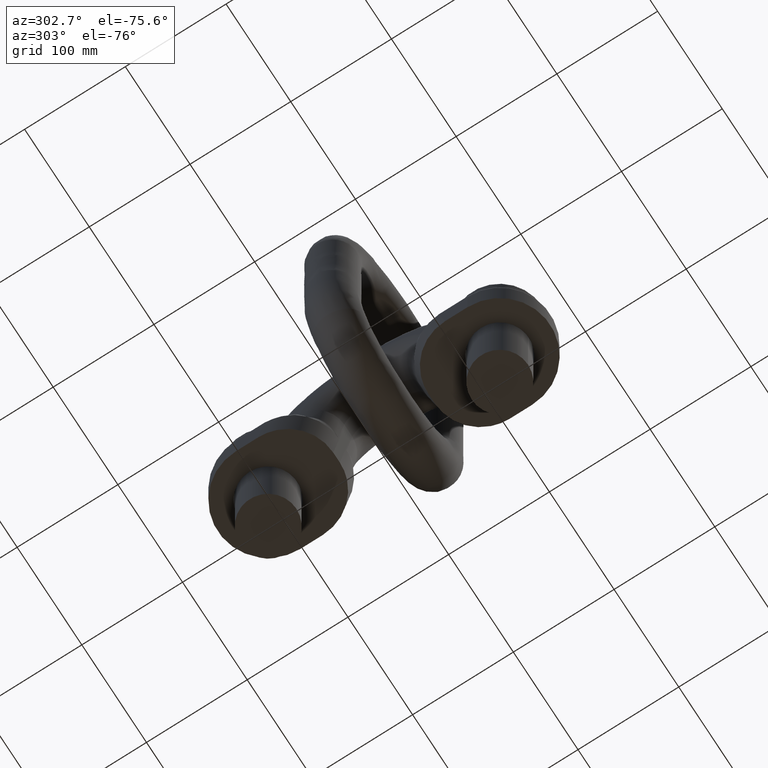
[diagram: clean part render]
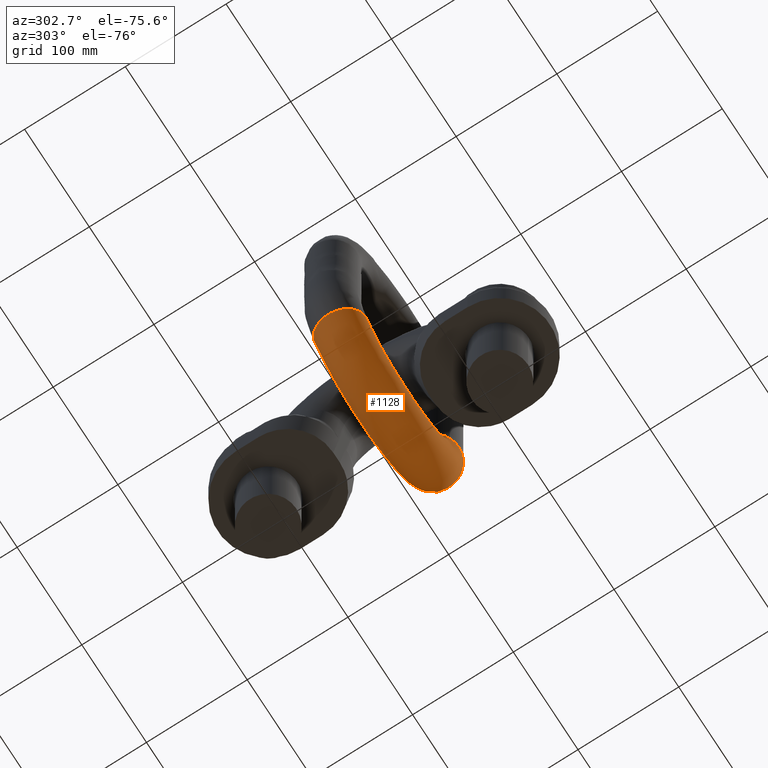
[diagram: same view with one face highlighted and labeled with its STEP entity id]
A machine part, auxiliary view. The second image highlights one B-rep face of the part: STEP entity #1128.
In plain terms, the highlighted face is a freeform B-spline surface patch.
Its self-contained STEP definition (entity closure, byte-faithful):
#31=(
BOUNDED_CURVE()
B_SPLINE_CURVE(4,(#6831,#6832,#6833,#6834,#6835,#6836,#6837,#6838,#6839,
#6840,#6841,#6842,#6843,#6844),.UNSPECIFIED.,.T.,.F.)
B_SPLINE_CURVE_WITH_KNOTS((2,3,3,3,3,3,2),(-0.25,0.,0.25,0.5,0.75,1.,1.25),
 .UNSPECIFIED.)
CURVE()
GEOMETRIC_REPRESENTATION_ITEM()
RATIONAL_B_SPLINE_CURVE((1.0166117137858,1.0166117137858,0.958470715535492,
1.0166117137858,1.0166117137858,0.958470715535492,1.0166117137858,1.0166117137858,
0.958470715535492,1.0166117137858,1.0166117137858,0.958470715535492,1.0166117137858,
1.0166117137858))
REPRESENTATION_ITEM('')
);
#33=(
BOUNDED_CURVE()
B_SPLINE_CURVE(4,(#7029,#7030,#7031,#7032,#7033,#7034,#7035,#7036,#7037,
#7038,#7039,#7040,#7041,#7042),.UNSPECIFIED.,.T.,.F.)
B_SPLINE_CURVE_WITH_KNOTS((2,3,3,3,3,3,2),(-0.25,0.,0.25,0.5,0.75,1.,1.25),
 .UNSPECIFIED.)
CURVE()
GEOMETRIC_REPRESENTATION_ITEM()
RATIONAL_B_SPLINE_CURVE((1.0166117137858,1.0166117137858,0.958470715535492,
1.0166117137858,1.0166117137858,0.958470715535492,1.0166117137858,1.0166117137858,
0.958470715535492,1.0166117137858,1.0166117137858,0.958470715535492,1.0166117137858,
1.0166117137858))
REPRESENTATION_ITEM('')
);
#820=(
BOUNDED_SURFACE()
B_SPLINE_SURFACE(4,3,((#7044,#7045,#7046,#7047,#7048,#7049,#7050,#7051,
#7052,#7053,#7054,#7055),(#7056,#7057,#7058,#7059,#7060,#7061,#7062,#7063,
#7064,#7065,#7066,#7067),(#7068,#7069,#7070,#7071,#7072,#7073,#7074,#7075,
#7076,#7077,#7078,#7079),(#7080,#7081,#7082,#7083,#7084,#7085,#7086,#7087,
#7088,#7089,#7090,#7091),(#7092,#7093,#7094,#7095,#7096,#7097,#7098,#7099,
#7100,#7101,#7102,#7103),(#7104,#7105,#7106,#7107,#7108,#7109,#7110,#7111,
#7112,#7113,#7114,#7115),(#7116,#7117,#7118,#7119,#7120,#7121,#7122,#7123,
#7124,#7125,#7126,#7127),(#7128,#7129,#7130,#7131,#7132,#7133,#7134,#7135,
#7136,#7137,#7138,#7139),(#7140,#7141,#7142,#7143,#7144,#7145,#7146,#7147,
#7148,#7149,#7150,#7151),(#7152,#7153,#7154,#7155,#7156,#7157,#7158,#7159,
#7160,#7161,#7162,#7163),(#7164,#7165,#7166,#7167,#7168,#7169,#7170,#7171,
#7172,#7173,#7174,#7175),(#7176,#7177,#7178,#7179,#7180,#7181,#7182,#7183,
#7184,#7185,#7186,#7187),(#7188,#7189,#7190,#7191,#7192,#7193,#7194,#7195,
#7196,#7197,#7198,#7199),(#7200,#7201,#7202,#7203,#7204,#7205,#7206,#7207,
#7208,#7209,#7210,#7211)),.UNSPECIFIED.,.T.,.F.,.F.)
B_SPLINE_SURFACE_WITH_KNOTS((2,3,3,3,3,3,2),(4,1,1,1,1,1,1,1,1,4),(-0.25,
0.,0.25,0.5,0.75,1.,1.25),(0.,0.0528319035243313,0.165101553258079,0.267210568821174,
0.425345898059021,0.609206614633371,0.807379625083767,0.901122363921789,
0.930838667900715,1.),.UNSPECIFIED.)
GEOMETRIC_REPRESENTATION_ITEM()
RATIONAL_B_SPLINE_SURFACE(((1.0166117137858,1.0166117137858,1.0166117137858,
1.0166117137858,1.0166117137858,1.0166117137858,1.0166117137858,1.0166117137858,
1.01661171378581,1.0166117137858,1.0166117137858,1.0166117137858),(1.0166117137858,
1.0166117137858,1.0166117137858,1.0166117137858,1.0166117137858,1.0166117137858,
1.0166117137858,1.0166117137858,1.01661171378581,1.0166117137858,1.0166117137858,
1.0166117137858),(0.958470715535492,0.958470715535493,0.958470715535494,
0.95847071553549,0.958470715535494,0.958470715535491,0.958470715535491,
0.958470715535494,0.95847071553549,0.958470715535494,0.958470715535492,
0.958470715535492),(1.0166117137858,1.0166117137858,1.0166117137858,1.0166117137858,
1.0166117137858,1.0166117137858,1.0166117137858,1.0166117137858,1.01661171378581,
1.0166117137858,1.0166117137858,1.0166117137858),(1.0166117137858,1.0166117137858,
1.0166117137858,1.0166117137858,1.0166117137858,1.0166117137858,1.0166117137858,
1.0166117137858,1.01661171378581,1.0166117137858,1.0166117137858,1.0166117137858),
(0.958470715535492,0.958470715535493,0.958470715535494,0.95847071553549,
0.958470715535494,0.958470715535491,0.958470715535491,0.958470715535494,
0.95847071553549,0.958470715535494,0.958470715535492,0.958470715535492),
(1.0166117137858,1.0166117137858,1.0166117137858,1.0166117137858,1.0166117137858,
1.0166117137858,1.0166117137858,1.0166117137858,1.01661171378581,1.0166117137858,
1.0166117137858,1.0166117137858),(1.0166117137858,1.0166117137858,1.0166117137858,
1.0166117137858,1.0166117137858,1.0166117137858,1.0166117137858,1.0166117137858,
1.01661171378581,1.0166117137858,1.0166117137858,1.0166117137858),(0.958470715535492,
0.958470715535493,0.958470715535494,0.95847071553549,0.958470715535494,
0.958470715535491,0.958470715535491,0.958470715535494,0.95847071553549,
0.958470715535494,0.958470715535492,0.958470715535492),(1.0166117137858,
1.0166117137858,1.0166117137858,1.0166117137858,1.0166117137858,1.0166117137858,
1.0166117137858,1.0166117137858,1.01661171378581,1.0166117137858,1.0166117137858,
1.0166117137858),(1.0166117137858,1.0166117137858,1.0166117137858,1.0166117137858,
1.0166117137858,1.0166117137858,1.0166117137858,1.0166117137858,1.01661171378581,
1.0166117137858,1.0166117137858,1.0166117137858),(0.958470715535492,0.958470715535493,
0.958470715535494,0.95847071553549,0.958470715535494,0.958470715535491,
0.958470715535491,0.958470715535494,0.95847071553549,0.958470715535494,
0.958470715535492,0.958470715535492),(1.0166117137858,1.0166117137858,1.0166117137858,
1.0166117137858,1.0166117137858,1.0166117137858,1.0166117137858,1.0166117137858,
1.01661171378581,1.0166117137858,1.0166117137858,1.0166117137858),(1.0166117137858,
1.0166117137858,1.0166117137858,1.0166117137858,1.0166117137858,1.0166117137858,
1.0166117137858,1.0166117137858,1.01661171378581,1.0166117137858,1.0166117137858,
1.0166117137858)))
REPRESENTATION_ITEM('')
SURFACE()
);
#1128=ADVANCED_FACE('',(#1207,#1208),#820,.F.);
#1207=FACE_BOUND('',#1396,.T.);
#1208=FACE_BOUND('',#1397,.T.);
#1396=EDGE_LOOP('',(#2733));
#1397=EDGE_LOOP('',(#2734));
#2733=ORIENTED_EDGE('',*,*,#3414,.T.);
#2734=ORIENTED_EDGE('',*,*,#3412,.F.);
#3008=VERTEX_POINT('',#6845);
#3010=VERTEX_POINT('',#7043);
#3412=EDGE_CURVE('',#3008,#3008,#31,.T.);
#3414=EDGE_CURVE('',#3010,#3010,#33,.T.);
#6831=CARTESIAN_POINT('',(86.9712002915969,24.,141.527378218331));
#6832=CARTESIAN_POINT('',(70.1003599779186,24.,143.37095792877));
#6833=CARTESIAN_POINT('',(58.8945190329427,19.7573593128807,144.59548857576));
#6834=CARTESIAN_POINT('',(54.6768089545232,8.48528137423857,145.05638350337));
#6835=CARTESIAN_POINT('',(54.6768089545231,-8.48528137423857,145.05638350337));
#6836=CARTESIAN_POINT('',(58.8945190329428,-19.7573593128807,144.59548857576));
#6837=CARTESIAN_POINT('',(70.1003599779186,-24.,143.37095792877));
#6838=CARTESIAN_POINT('',(86.971200291597,-24.,141.527378218331));
#6839=CARTESIAN_POINT('',(98.1770412365729,-19.7573593128807,140.302847571342));
#6840=CARTESIAN_POINT('',(102.394751314992,-8.48528137423857,139.841952643732));
#6841=CARTESIAN_POINT('',(102.394751314992,8.48528137423857,139.841952643732));
#6842=CARTESIAN_POINT('',(98.1770412365728,19.7573593128807,140.302847571342));
#6843=CARTESIAN_POINT('',(86.9712002915969,24.,141.527378218331));
#6844=CARTESIAN_POINT('',(70.1003599779186,24.,143.37095792877));
#6845=CARTESIAN_POINT('',(78.5357801347578,24.,142.449168073551));
#7029=CARTESIAN_POINT('',(-73.8723523906407,24.,104.130348060499));
#7030=CARTESIAN_POINT('',(-59.5424517269995,24.,113.221512363064));
#7031=CARTESIAN_POINT('',(-50.0243373587497,19.7573593128807,119.25998699059));
#7032=CARTESIAN_POINT('',(-46.4418621928395,8.48528137423857,121.532778066231));
#7033=CARTESIAN_POINT('',(-46.4418621928395,-8.48528137423857,121.532778066231));
#7034=CARTESIAN_POINT('',(-50.0243373587497,-19.7573593128807,119.25998699059));
#7035=CARTESIAN_POINT('',(-59.5424517269995,-24.,113.221512363064));
#7036=CARTESIAN_POINT('',(-73.8723523906407,-24.,104.130348060499));
#7037=CARTESIAN_POINT('',(-83.3904667588903,-19.7573593128807,98.0918734329735));
#7038=CARTESIAN_POINT('',(-86.9729419248007,-8.48528137423857,95.8190823573323));
#7039=CARTESIAN_POINT('',(-86.9729419248007,8.48528137423857,95.8190823573323));
#7040=CARTESIAN_POINT('',(-83.3904667588904,19.7573593128807,98.0918734329734));
#7041=CARTESIAN_POINT('',(-73.8723523906407,24.,104.130348060499));
#7042=CARTESIAN_POINT('',(-59.5424517269995,24.,113.221512363064));
#7043=CARTESIAN_POINT('',(-66.7074020588201,24.,108.675930211782));
#7044=CARTESIAN_POINT('',(-59.5424517269995,24.,113.221512363064));
#7045=CARTESIAN_POINT('',(-57.6168782580571,24.,110.186603322215));
#7046=CARTESIAN_POINT('',(-51.035637349192,24.,101.427405573676));
#7047=CARTESIAN_POINT('',(-38.2648759928122,24.,90.7304524598509));
#7048=CARTESIAN_POINT('',(-18.2119717772526,24.,81.6041249394051));
#7049=CARTESIAN_POINT('',(7.12990876207046,24.,78.903236163781));
#7050=CARTESIAN_POINT('',(35.9511714004425,23.9999999999999,87.6643141273451));
#7051=CARTESIAN_POINT('',(55.8071198695015,24.0000000000001,105.487760311045));
#7052=CARTESIAN_POINT('',(64.5167084620211,23.9999999999999,121.789766428194));
#7053=CARTESIAN_POINT('',(68.2986738149283,24.0000000000001,132.664663522906));
#7054=CARTESIAN_POINT('',(69.6136440000928,24.,138.85682230609));
#7055=CARTESIAN_POINT('',(70.1003599779186,24.,143.37095792877));
#7056=CARTESIAN_POINT('',(-73.8723523906407,24.,104.130348060499));
#7057=CARTESIAN_POINT('',(-71.4833570146112,24.,100.364887777428));
#7058=CARTESIAN_POINT('',(-63.3182288834684,24.,89.4956267569343));
#7059=CARTESIAN_POINT('',(-47.4739672544974,24.,76.2269483417273));
#7060=CARTESIAN_POINT('',(-22.5949916035911,24.0000000000001,64.9008989085714));
#7061=CARTESIAN_POINT('',(8.8458422049764,23.9999999999999,61.555898518538));
#7062=CARTESIAN_POINT('',(44.6034304211264,24.0000000000001,72.4159644218796));
#7063=CARTESIAN_POINT('',(69.2380495807134,24.,94.544243344412));
#7064=CARTESIAN_POINT('',(80.0437483572698,24.,114.74169198737));
#7065=CARTESIAN_POINT('',(84.7359078021772,24.,128.308757551302));
#7066=CARTESIAN_POINT('',(86.3673478604832,24.,135.840585344414));
#7067=CARTESIAN_POINT('',(86.9712002915969,24.,141.527378218331));
#7068=CARTESIAN_POINT('',(-83.3904667588904,19.7573593128807,98.0918734329734));
#7069=CARTESIAN_POINT('',(-80.6936602670728,19.7573593128807,93.8411711068087));
#7070=CARTESIAN_POINT('',(-71.4764927616237,19.7573593128807,81.5703774436187));
#7071=CARTESIAN_POINT('',(-53.5907705676404,19.7573593128808,66.5935242045356));
#7072=CARTESIAN_POINT('',(-25.5062528163953,19.7573593128807,53.8063896435082));
#7073=CARTESIAN_POINT('',(9.98558846988398,19.7573593128807,50.0335615835027));
#7074=CARTESIAN_POINT('',(50.3503782078298,19.7573593128807,62.2878037437011));
#7075=CARTESIAN_POINT('',(78.1590552501798,19.7573593128807,87.2754109551145));
#7076=CARTESIAN_POINT('',(90.3570188392026,19.7573593128807,110.06026535516));
#7077=CARTESIAN_POINT('',(95.6537415444076,19.7573593128807,125.41550572854));
#7078=CARTESIAN_POINT('',(97.495385184537,19.7573593128807,133.837159847138));
#7079=CARTESIAN_POINT('',(98.1770412365728,19.7573593128807,140.302847571342));
#7080=CARTESIAN_POINT('',(-86.9729419248007,8.48528137423857,95.8190823573323));
#7081=CARTESIAN_POINT('',(-84.1602799562113,8.48528137423856,91.3857422206118));
#7082=CARTESIAN_POINT('',(-74.5471406451928,8.48528137423856,78.5874327394334));
#7083=CARTESIAN_POINT('',(-55.8930433830617,8.48528137423856,62.9676481750045));
#7084=CARTESIAN_POINT('',(-26.60200777298,8.48528137423857,49.6305831358));
#7085=CARTESIAN_POINT('',(10.4145718306105,8.48528137423852,45.6967271721916));
#7086=CARTESIAN_POINT('',(52.5134429630006,8.48528137423858,58.4757163173349));
#7087=CARTESIAN_POINT('',(81.5167876779831,8.4852813742386,84.5395317134561));
#7088=CARTESIAN_POINT('',(94.2387788130144,8.48528137423856,108.298246744954));
#7089=CARTESIAN_POINT('',(99.7630500412202,8.4852813742386,124.32652923564));
#7090=CARTESIAN_POINT('',(101.683811149635,8.48528137423856,133.083100606719));
#7091=CARTESIAN_POINT('',(102.394751314992,8.48528137423857,139.841952643732));
#7092=CARTESIAN_POINT('',(-86.9729419248007,-8.48528137423857,95.8190823573323));
#7093=CARTESIAN_POINT('',(-84.1602799562113,-8.48528137423857,91.3857422206118));
#7094=CARTESIAN_POINT('',(-74.5471406451928,-8.48528137423858,78.5874327394334));
#7095=CARTESIAN_POINT('',(-55.8930433830616,-8.48528137423858,62.9676481750045));
#7096=CARTESIAN_POINT('',(-26.60200777298,-8.48528137423857,49.6305831358));
#7097=CARTESIAN_POINT('',(10.4145718306106,-8.48528137423861,45.6967271721916));
#7098=CARTESIAN_POINT('',(52.5134429630005,-8.48528137423856,58.4757163173349));
#7099=CARTESIAN_POINT('',(81.5167876779832,-8.48528137423856,84.5395317134561));
#7100=CARTESIAN_POINT('',(94.2387788130144,-8.48528137423855,108.298246744954));
#7101=CARTESIAN_POINT('',(99.7630500412202,-8.48528137423856,124.32652923564));
#7102=CARTESIAN_POINT('',(101.683811149635,-8.48528137423857,133.083100606719));
#7103=CARTESIAN_POINT('',(102.394751314992,-8.48528137423857,139.841952643732));
#7104=CARTESIAN_POINT('',(-83.3904667588903,-19.7573593128807,98.0918734329735));
#7105=CARTESIAN_POINT('',(-80.6936602670727,-19.7573593128807,93.8411711068087));
#7106=CARTESIAN_POINT('',(-71.4764927616237,-19.7573593128807,81.5703774436185));
#7107=CARTESIAN_POINT('',(-53.5907705676403,-19.7573593128808,66.5935242045357));
#7108=CARTESIAN_POINT('',(-25.5062528163953,-19.7573593128807,53.8063896435081));
#7109=CARTESIAN_POINT('',(9.98558846988402,-19.7573593128808,50.0335615835028));
#7110=CARTESIAN_POINT('',(50.3503782078297,-19.7573593128807,62.2878037437011));
#7111=CARTESIAN_POINT('',(78.1590552501798,-19.7573593128807,87.2754109551144));
#7112=CARTESIAN_POINT('',(90.3570188392027,-19.7573593128807,110.06026535516));
#7113=CARTESIAN_POINT('',(95.6537415444076,-19.7573593128807,125.41550572854));
#7114=CARTESIAN_POINT('',(97.495385184537,-19.7573593128807,133.837159847138));
#7115=CARTESIAN_POINT('',(98.1770412365729,-19.7573593128807,140.302847571342));
#7116=CARTESIAN_POINT('',(-73.8723523906407,-24.,104.130348060499));
#7117=CARTESIAN_POINT('',(-71.4833570146112,-24.,100.364887777428));
#7118=CARTESIAN_POINT('',(-63.3182288834685,-24.,89.4956267569344));
#7119=CARTESIAN_POINT('',(-47.4739672544974,-24.,76.2269483417272));
#7120=CARTESIAN_POINT('',(-22.5949916035911,-24.,64.9008989085714));
#7121=CARTESIAN_POINT('',(8.84584220497634,-24.,61.5558985185381));
#7122=CARTESIAN_POINT('',(44.6034304211264,-23.9999999999999,72.4159644218794));
#7123=CARTESIAN_POINT('',(69.2380495807134,-24.0000000000001,94.5442433444122));
#7124=CARTESIAN_POINT('',(80.0437483572699,-23.9999999999999,114.74169198737));
#7125=CARTESIAN_POINT('',(84.7359078021772,-24.0000000000001,128.308757551302));
#7126=CARTESIAN_POINT('',(86.3673478604833,-24.,135.840585344414));
#7127=CARTESIAN_POINT('',(86.971200291597,-24.,141.527378218331));
#7128=CARTESIAN_POINT('',(-59.5424517269995,-24.,113.221512363064));
#7129=CARTESIAN_POINT('',(-57.6168782580571,-24.,110.186603322215));
#7130=CARTESIAN_POINT('',(-51.035637349192,-24.,101.427405573676));
#7131=CARTESIAN_POINT('',(-38.2648759928122,-24.,90.730452459851));
#7132=CARTESIAN_POINT('',(-18.2119717772526,-24.,81.6041249394051));
#7133=CARTESIAN_POINT('',(7.12990876207042,-24.,78.903236163781));
#7134=CARTESIAN_POINT('',(35.9511714004425,-24.,87.6643141273451));
#7135=CARTESIAN_POINT('',(55.8071198695015,-24.,105.487760311045));
#7136=CARTESIAN_POINT('',(64.516708462021,-24.,121.789766428194));
#7137=CARTESIAN_POINT('',(68.2986738149283,-24.,132.664663522906));
#7138=CARTESIAN_POINT('',(69.6136440000928,-24.,138.85682230609));
#7139=CARTESIAN_POINT('',(70.1003599779186,-24.,143.37095792877));
#7140=CARTESIAN_POINT('',(-50.0243373587497,-19.7573593128807,119.25998699059));
#7141=CARTESIAN_POINT('',(-48.4065750055955,-19.7573593128807,116.710319992834));
#7142=CARTESIAN_POINT('',(-42.8773734710366,-19.7573593128807,109.352654886991));
#7143=CARTESIAN_POINT('',(-32.1480726796695,-19.7573593128807,100.363876597043));
#7144=CARTESIAN_POINT('',(-15.3007105644482,-19.7573593128807,92.6986342044679));
#7145=CARTESIAN_POINT('',(5.99016249716267,-19.7573593128807,90.4255730988169));
#7146=CARTESIAN_POINT('',(30.2042236137394,-19.7573593128807,97.7924748055233));
#7147=CARTESIAN_POINT('',(46.8861142000346,-19.7573593128807,112.756592700343));
#7148=CARTESIAN_POINT('',(54.2034379800888,-19.7573593128808,126.471193060405));
#7149=CARTESIAN_POINT('',(57.3808400726974,-19.7573593128807,135.557915345667));
#7150=CARTESIAN_POINT('',(58.485606676039,-19.7573593128807,140.860247803367));
#7151=CARTESIAN_POINT('',(58.8945190329428,-19.7573593128807,144.59548857576));
#7152=CARTESIAN_POINT('',(-46.4418621928395,-8.48528137423857,121.532778066231));
#7153=CARTESIAN_POINT('',(-44.9399553164571,-8.48528137423857,119.165748879031));
#7154=CARTESIAN_POINT('',(-39.8067255874675,-8.48528137423856,112.335599591176));
#7155=CARTESIAN_POINT('',(-29.8457998642481,-8.48528137423857,103.989752626574));
#7156=CARTESIAN_POINT('',(-14.2049556078636,-8.48528137423857,96.8744407121766));
#7157=CARTESIAN_POINT('',(5.56117913643615,-8.48528137423853,94.7624075101277));
#7158=CARTESIAN_POINT('',(28.0411588585685,-8.48528137423858,101.604562231889));
#7159=CARTESIAN_POINT('',(43.5283817722317,-8.4852813742386,115.492471942002));
#7160=CARTESIAN_POINT('',(50.3216780062765,-8.48528137423857,128.23321167061));
#7161=CARTESIAN_POINT('',(53.2715315758854,-8.4852813742386,136.646891838569));
#7162=CARTESIAN_POINT('',(54.2971807109413,-8.48528137423857,141.614307043786));
#7163=CARTESIAN_POINT('',(54.6768089545231,-8.48528137423857,145.05638350337));
#7164=CARTESIAN_POINT('',(-46.4418621928395,8.48528137423857,121.532778066231));
#7165=CARTESIAN_POINT('',(-44.9399553164571,8.48528137423857,119.165748879031));
#7166=CARTESIAN_POINT('',(-39.8067255874675,8.48528137423857,112.335599591176));
#7167=CARTESIAN_POINT('',(-29.8457998642481,8.48528137423859,103.989752626574));
#7168=CARTESIAN_POINT('',(-14.2049556078636,8.48528137423857,96.8744407121766));
#7169=CARTESIAN_POINT('',(5.56117913643618,8.4852813742386,94.7624075101277));
#7170=CARTESIAN_POINT('',(28.0411588585684,8.48528137423857,101.604562231889));
#7171=CARTESIAN_POINT('',(43.5283817722318,8.48528137423855,115.492471942002));
#7172=CARTESIAN_POINT('',(50.3216780062765,8.48528137423856,128.23321167061));
#7173=CARTESIAN_POINT('',(53.2715315758853,8.48528137423855,136.646891838569));
#7174=CARTESIAN_POINT('',(54.2971807109413,8.48528137423857,141.614307043786));
#7175=CARTESIAN_POINT('',(54.6768089545232,8.48528137423857,145.05638350337));
#7176=CARTESIAN_POINT('',(-50.0243373587497,19.7573593128807,119.25998699059));
#7177=CARTESIAN_POINT('',(-48.4065750055955,19.7573593128807,116.710319992834));
#7178=CARTESIAN_POINT('',(-42.8773734710366,19.7573593128807,109.352654886991));
#7179=CARTESIAN_POINT('',(-32.1480726796695,19.7573593128808,100.363876597043));
#7180=CARTESIAN_POINT('',(-15.3007105644482,19.7573593128807,92.6986342044679));
#7181=CARTESIAN_POINT('',(5.99016249716268,19.7573593128808,90.4255730988169));
#7182=CARTESIAN_POINT('',(30.2042236137394,19.7573593128807,97.7924748055232));
#7183=CARTESIAN_POINT('',(46.8861142000346,19.7573593128807,112.756592700343));
#7184=CARTESIAN_POINT('',(54.2034379800888,19.7573593128807,126.471193060405));
#7185=CARTESIAN_POINT('',(57.3808400726975,19.7573593128807,135.557915345667));
#7186=CARTESIAN_POINT('',(58.485606676039,19.7573593128807,140.860247803367));
#7187=CARTESIAN_POINT('',(58.8945190329427,19.7573593128807,144.59548857576));
#7188=CARTESIAN_POINT('',(-59.5424517269995,24.,113.221512363064));
#7189=CARTESIAN_POINT('',(-57.6168782580571,24.,110.186603322215));
#7190=CARTESIAN_POINT('',(-51.035637349192,24.,101.427405573676));
#7191=CARTESIAN_POINT('',(-38.2648759928122,24.,90.7304524598509));
#7192=CARTESIAN_POINT('',(-18.2119717772526,24.,81.6041249394051));
#7193=CARTESIAN_POINT('',(7.12990876207046,24.,78.903236163781));
#7194=CARTESIAN_POINT('',(35.9511714004425,23.9999999999999,87.6643141273451));
#7195=CARTESIAN_POINT('',(55.8071198695015,24.0000000000001,105.487760311045));
#7196=CARTESIAN_POINT('',(64.5167084620211,23.9999999999999,121.789766428194));
#7197=CARTESIAN_POINT('',(68.2986738149283,24.0000000000001,132.664663522906));
#7198=CARTESIAN_POINT('',(69.6136440000928,24.,138.85682230609));
#7199=CARTESIAN_POINT('',(70.1003599779186,24.,143.37095792877));
#7200=CARTESIAN_POINT('',(-73.8723523906407,24.,104.130348060499));
#7201=CARTESIAN_POINT('',(-71.4833570146112,24.,100.364887777428));
#7202=CARTESIAN_POINT('',(-63.3182288834684,24.,89.4956267569343));
#7203=CARTESIAN_POINT('',(-47.4739672544974,24.,76.2269483417273));
#7204=CARTESIAN_POINT('',(-22.5949916035911,24.0000000000001,64.9008989085714));
#7205=CARTESIAN_POINT('',(8.8458422049764,23.9999999999999,61.555898518538));
#7206=CARTESIAN_POINT('',(44.6034304211264,24.0000000000001,72.4159644218796));
#7207=CARTESIAN_POINT('',(69.2380495807134,24.,94.544243344412));
#7208=CARTESIAN_POINT('',(80.0437483572698,24.,114.74169198737));
#7209=CARTESIAN_POINT('',(84.7359078021772,24.,128.308757551302));
#7210=CARTESIAN_POINT('',(86.3673478604832,24.,135.840585344414));
#7211=CARTESIAN_POINT('',(86.9712002915969,24.,141.527378218331));